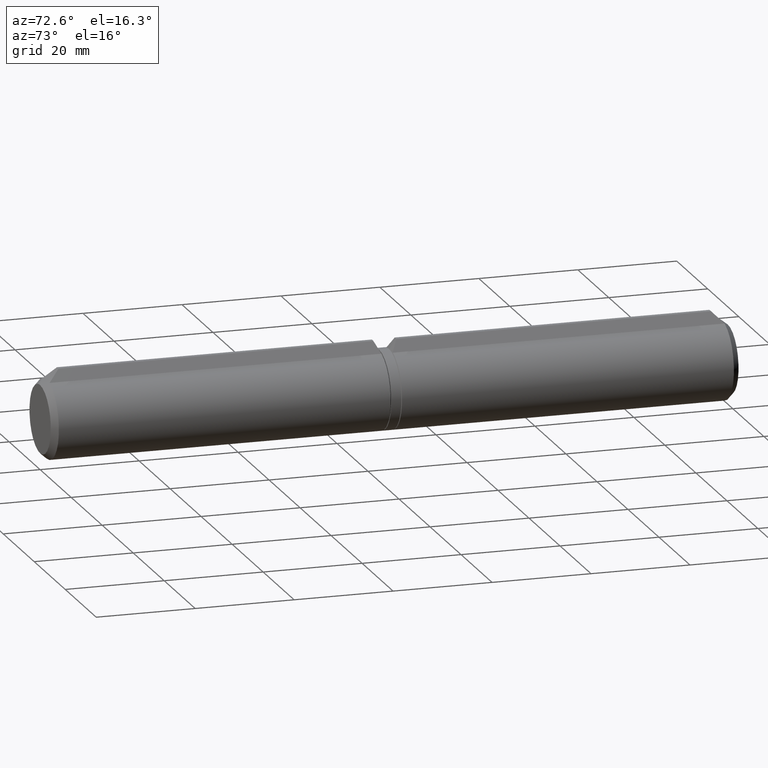
[diagram: clean part render]
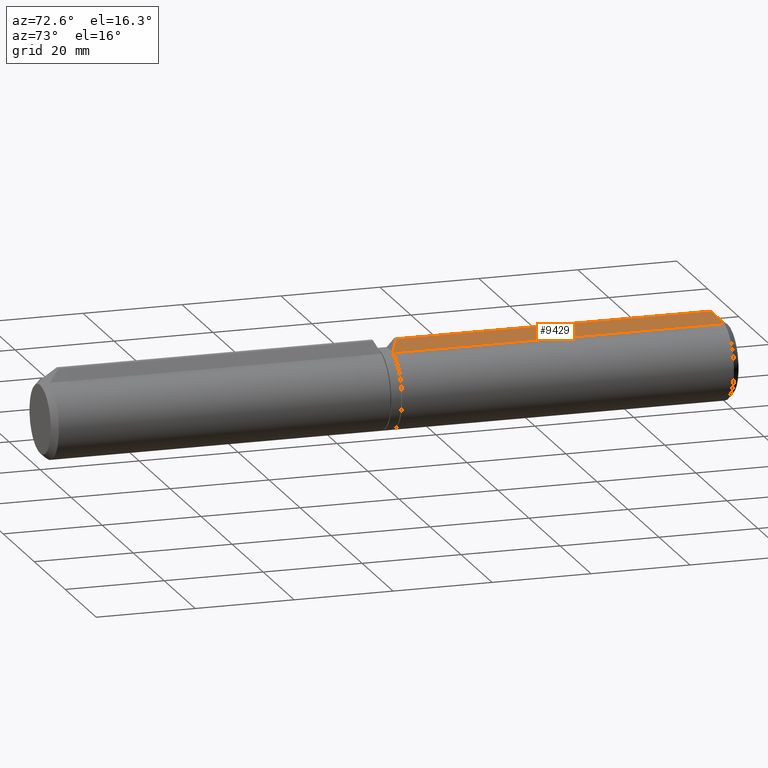
[diagram: same view with one face highlighted and labeled with its STEP entity id]
A machine part, auxiliary view. The second image highlights one B-rep face of the part: STEP entity #9429.
In plain terms, the highlighted planar face has unit normal (0.8325, 0, 0.554).
Its self-contained STEP definition (entity closure, byte-faithful):
#76 = FACE_OUTER_BOUND ( 'NONE', #14710, .T. ) ;
#428 = LINE ( 'NONE', #16873, #6953 ) ;
#530 = CARTESIAN_POINT ( 'NONE',  ( 0.4999999999999991673, 67.19142088965806181, -10.00000000000000000 ) ) ;
#1464 = VERTEX_POINT ( 'NONE', #13562 ) ;
#1882 = VECTOR ( 'NONE', #11058, 1000.000000000000000 ) ;
#3124 = DIRECTION ( 'NONE',  ( -0.5540124675609958693, 0.000000000000000000, -0.8325083697999536847 ) ) ;
#3171 = CARTESIAN_POINT ( 'NONE',  ( 1.479702347256610429, 1.995575315282690942, -8.527812185176154358 ) ) ;
#3235 = CARTESIAN_POINT ( 'NONE',  ( 1.999999999999999556, 68.35333380148257731, -7.745966692414835819 ) ) ;
#4527 = CARTESIAN_POINT ( 'NONE',  ( 0.4999999999999998890, 3.561355707479112009, -10.00000000000000000 ) ) ;
#5344 = LINE ( 'NONE', #13907, #1882 ) ;
#6253 = B_SPLINE_CURVE_WITH_KNOTS ( 'NONE', 3,
 ( #3235, #10999, #11059, #530 ),
 .UNSPECIFIED., .F., .F.,
 ( 4, 4 ),
 ( 2.572824265816976505E-07, 0.002946561368288067029 ),
 .UNSPECIFIED. ) ;
#6545 = CARTESIAN_POINT ( 'NONE',  ( 1.999999999999999556, 68.35333380148257731, -7.745966692414835819 ) ) ;
#6953 = VECTOR ( 'NONE', #15722, 1000.000000000000000 ) ;
#7737 = ORIENTED_EDGE ( 'NONE', *, *, #13138, .F. ) ;
#8239 = CARTESIAN_POINT ( 'NONE',  ( 0.9837837391402514120, 2.768140612047163440, -9.273023558873186190 ) ) ;
#8881 = B_SPLINE_CURVE_WITH_KNOTS ( 'NONE', 3,
 ( #4527, #8239, #3171, #14721 ),
 .UNSPECIFIED., .F., .F.,
 ( 4, 4 ),
 ( 0.01086577870587800317, 0.01440535464140346028 ),
 .UNSPECIFIED. ) ;
#9429 = ADVANCED_FACE ( 'NONE', ( #76 ), #13675, .T. ) ;
#9864 = CARTESIAN_POINT ( 'NONE',  ( 0.4999999999999998890, 3.561355707479112009, -10.00000000000000000 ) ) ;
#10258 = ORIENTED_EDGE ( 'NONE', *, *, #12427, .T. ) ;
#10925 = AXIS2_PLACEMENT_3D ( 'NONE', #15068, #10942, #3124 ) ;
#10942 = DIRECTION ( 'NONE',  ( 0.8325083697999536847, 0.000000000000000000, -0.5540124675609958693 ) ) ;
#10999 = CARTESIAN_POINT ( 'NONE',  ( 1.491950127105382551, 67.99988805233510902, -8.509407582694086258 ) ) ;
#11058 = DIRECTION ( 'NONE',  ( 0.000000000000000000, 1.000000000000000000, 0.000000000000000000 ) ) ;
#11059 = CARTESIAN_POINT ( 'NONE',  ( 0.9937491818952162159, 67.60501674752582346, -9.258048598943503293 ) ) ;
#11179 = EDGE_CURVE ( 'NONE', #11924, #13320, #5344, .T. ) ;
#11924 = VERTEX_POINT ( 'NONE', #13034 ) ;
#12427 = EDGE_CURVE ( 'NONE', #14757, #1464, #428, .T. ) ;
#13034 = CARTESIAN_POINT ( 'NONE',  ( 2.000000000000000444, 1.287078023558462903, -7.745966692414834931 ) ) ;
#13138 = EDGE_CURVE ( 'NONE', #14757, #11924, #8881, .T. ) ;
#13208 = ORIENTED_EDGE ( 'NONE', *, *, #14838, .F. ) ;
#13320 = VERTEX_POINT ( 'NONE', #6545 ) ;
#13562 = CARTESIAN_POINT ( 'NONE',  ( 0.4999999999999991673, 67.19142088965806181, -10.00000000000000000 ) ) ;
#13675 = PLANE ( 'NONE',  #10925 ) ;
#13907 = CARTESIAN_POINT ( 'NONE',  ( 1.999999999999999556, -4.591368657786393470, -7.745966692414835819 ) ) ;
#14710 = EDGE_LOOP ( 'NONE', ( #13208, #16726, #7737, #10258 ) ) ;
#14721 = CARTESIAN_POINT ( 'NONE',  ( 2.000000000000000444, 1.287078023558462903, -7.745966692414834931 ) ) ;
#14757 = VERTEX_POINT ( 'NONE', #9864 ) ;
#14838 = EDGE_CURVE ( 'NONE', #13320, #1464, #6253, .T. ) ;
#15068 = CARTESIAN_POINT ( 'NONE',  ( 1.999999999999999556, -4.591368657786393470, -7.745966692414835819 ) ) ;
#15722 = DIRECTION ( 'NONE',  ( 0.000000000000000000, 1.000000000000000000, 0.000000000000000000 ) ) ;
#16726 = ORIENTED_EDGE ( 'NONE', *, *, #11179, .F. ) ;
#16873 = CARTESIAN_POINT ( 'NONE',  ( 0.4999999999999998890, -4.591368657786393470, -10.00000000000000000 ) ) ;